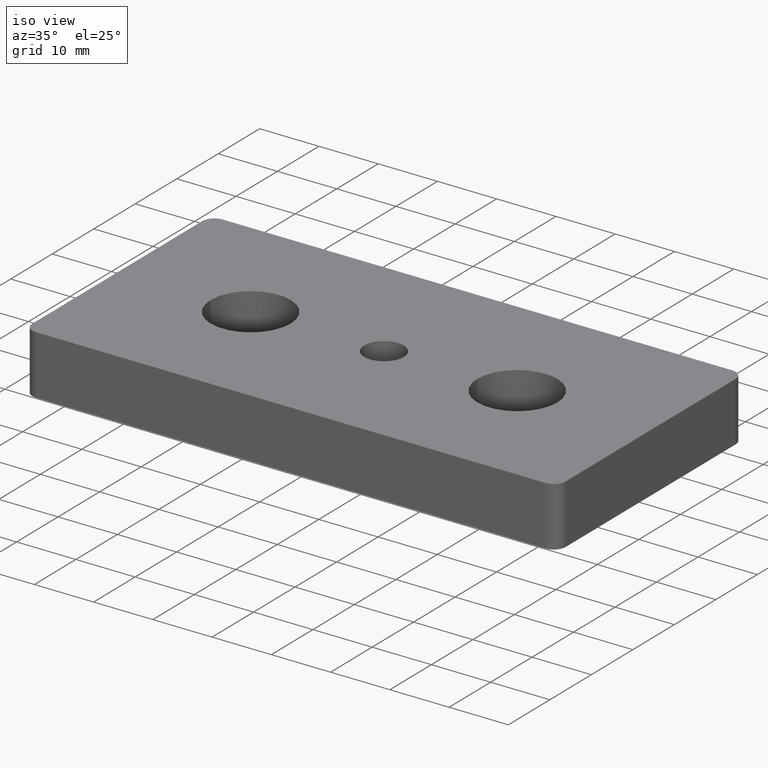
[diagram: clean part render]
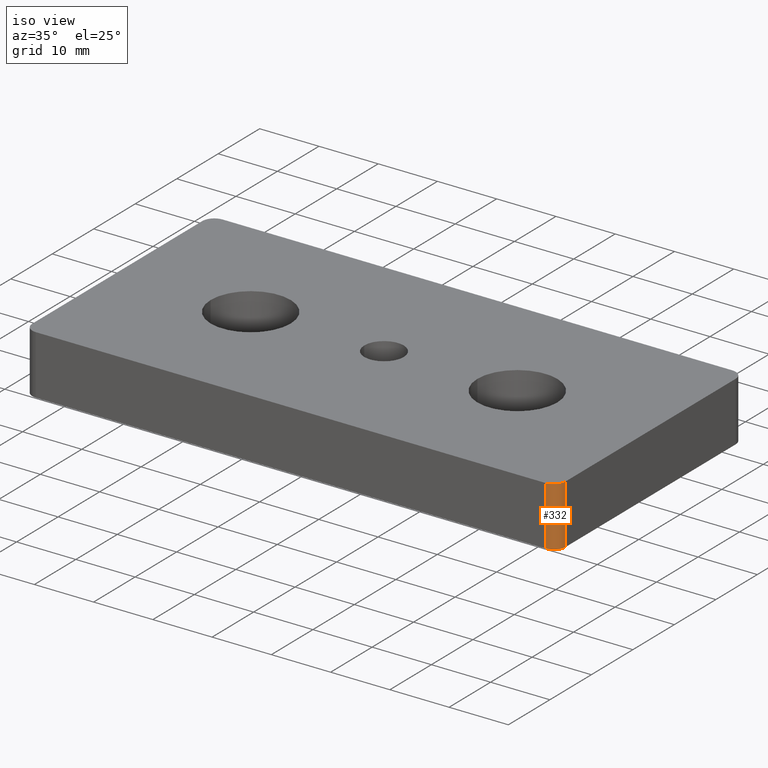
[diagram: same view with one face highlighted and labeled with its STEP entity id]
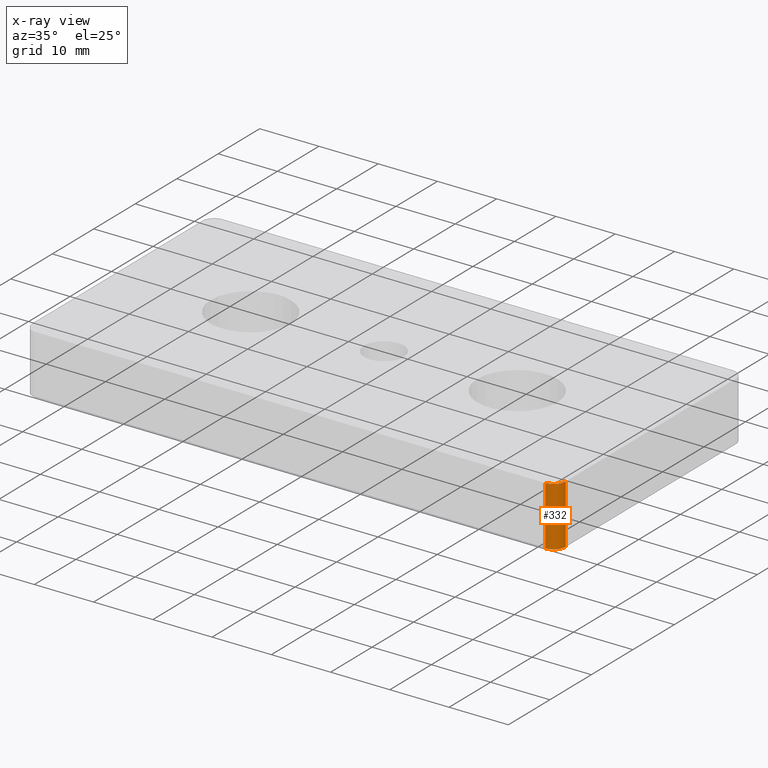
[diagram: x-ray of the same camera — body ghosted, the highlighted face saturated]
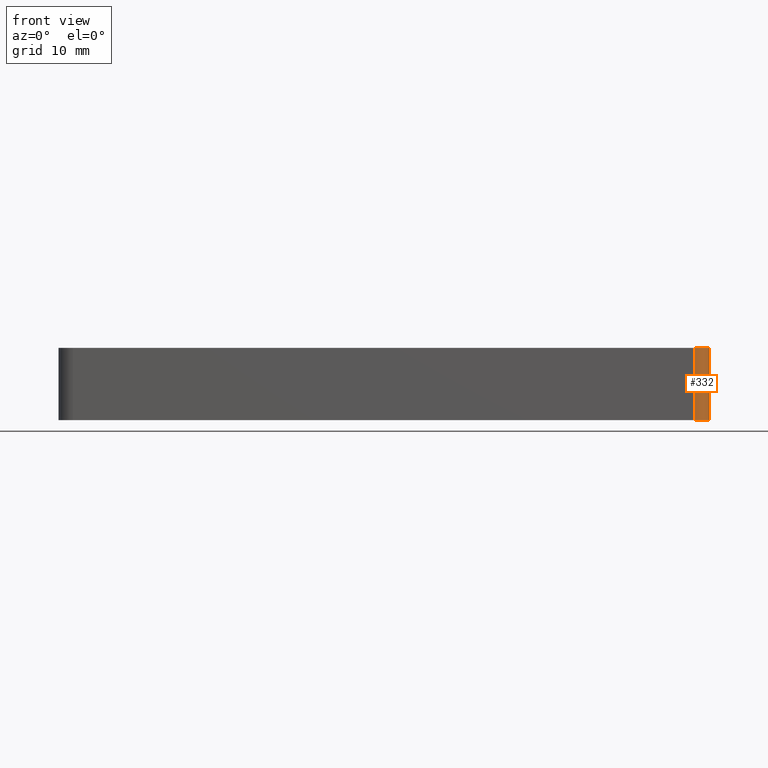
[diagram: same view with one face highlighted and labeled with its STEP entity id]
A machine part, iso view. The second image highlights one B-rep face of the part: STEP entity #332.
The next image is the same camera in x-ray: the body ghosted, the highlighted face saturated — about 0% of this face is hidden behind the body in this view.
A second angle (front view) of the same face is appended — the face is thin or edge-on in the first view.
In plain terms, the highlighted cylindrical surface (edge-blend (fillet) strip) has radius 2 mm, axis along (0, 0, 1).
Its self-contained STEP definition (entity closure, byte-faithful):
#43=FACE_OUTER_BOUND('',#65,.T.);
#65=EDGE_LOOP('',(#278,#279,#280,#281));
#88=LINE('',#589,#109);
#89=LINE('',#590,#110);
#109=VECTOR('',#488,10.);
#110=VECTOR('',#489,10.);
#137=CIRCLE('',#388,2.);
#139=CIRCLE('',#393,2.);
#166=VERTEX_POINT('',#572);
#167=VERTEX_POINT('',#574);
#170=VERTEX_POINT('',#586);
#171=VERTEX_POINT('',#587);
#205=EDGE_CURVE('',#167,#166,#137,.T.);
#211=EDGE_CURVE('',#170,#171,#139,.T.);
#212=EDGE_CURVE('',#171,#167,#88,.T.);
#213=EDGE_CURVE('',#166,#170,#89,.T.);
#278=ORIENTED_EDGE('',*,*,#211,.T.);
#279=ORIENTED_EDGE('',*,*,#212,.T.);
#280=ORIENTED_EDGE('',*,*,#205,.T.);
#281=ORIENTED_EDGE('',*,*,#213,.T.);
#319=CYLINDRICAL_SURFACE('',#392,2.);
#332=ADVANCED_FACE('',(#43),#319,.T.);
#388=AXIS2_PLACEMENT_3D('',#575,#472,#473);
#392=AXIS2_PLACEMENT_3D('',#585,#484,#485);
#393=AXIS2_PLACEMENT_3D('',#588,#486,#487);
#472=DIRECTION('center_axis',(0.,0.,1.));
#473=DIRECTION('ref_axis',(0.707106781186546,-0.707106781186549,0.));
#484=DIRECTION('center_axis',(0.,0.,1.));
#485=DIRECTION('ref_axis',(0.707106781186546,-0.707106781186549,0.));
#486=DIRECTION('center_axis',(0.,0.,-1.));
#487=DIRECTION('ref_axis',(0.707106781186546,-0.707106781186549,0.));
#488=DIRECTION('',(0.,0.,-1.));
#489=DIRECTION('',(0.,0.,1.));
#572=CARTESIAN_POINT('',(45.,-20.5,0.));
#574=CARTESIAN_POINT('',(43.,-22.5,0.));
#575=CARTESIAN_POINT('Origin',(43.,-20.5,0.));
#585=CARTESIAN_POINT('Origin',(43.,-20.5,0.));
#586=CARTESIAN_POINT('',(45.,-20.5,10.));
#587=CARTESIAN_POINT('',(43.,-22.5,10.));
#588=CARTESIAN_POINT('Origin',(43.,-20.5,10.));
#589=CARTESIAN_POINT('',(43.,-22.5,0.));
#590=CARTESIAN_POINT('',(45.,-20.5,0.));